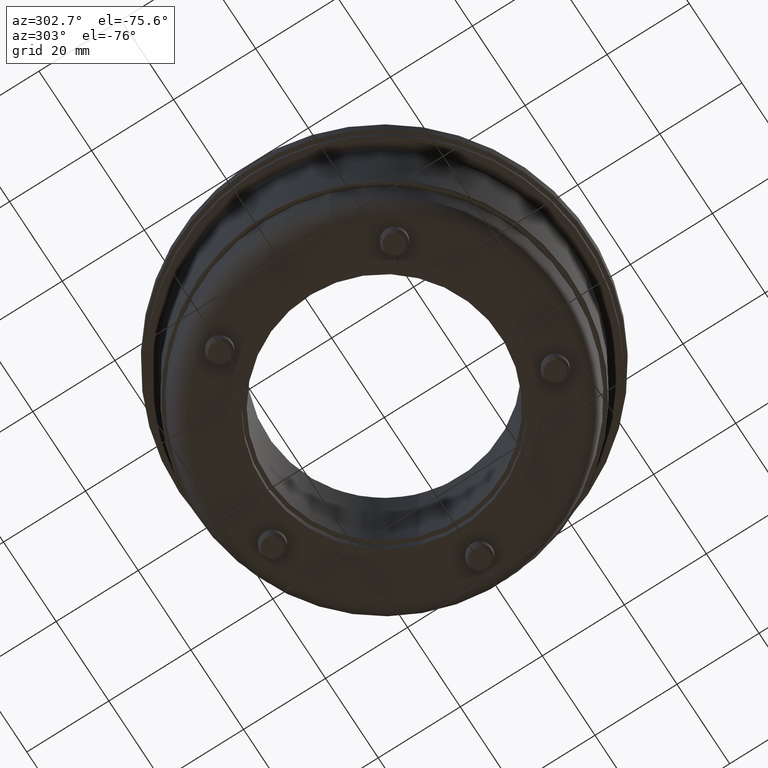
[diagram: clean part render]
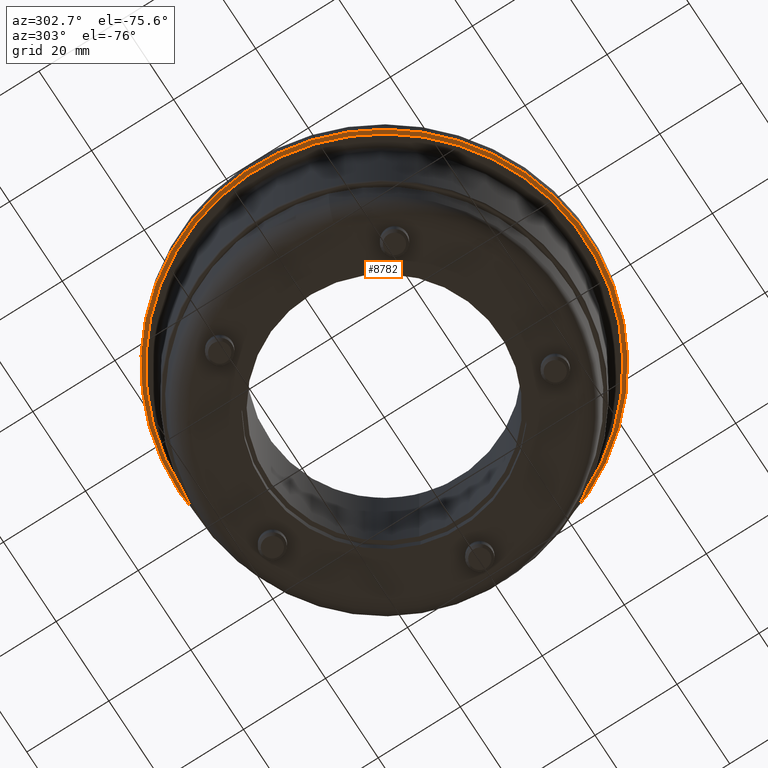
[diagram: same view with one face highlighted and labeled with its STEP entity id]
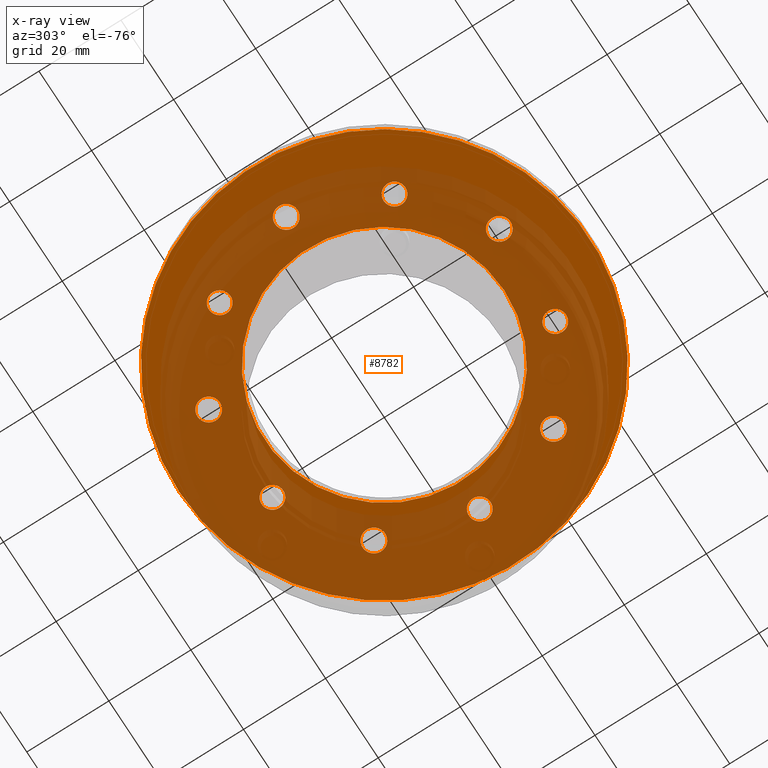
[diagram: x-ray of the same camera — body ghosted, the highlighted face saturated]
A machine part, auxiliary view. The second image highlights one B-rep face of the part: STEP entity #8782.
The next image is the same camera in x-ray: the body ghosted, the highlighted face saturated — about 75% of this face is hidden behind the body in this view.
In plain terms, the highlighted planar face has unit normal (-0, -0, -1).
Its self-contained STEP definition (entity closure, byte-faithful):
#8506=CARTESIAN_POINT('',(49.950000000000003,-4.999999999999993,-6.117111E-015));
#8507=VERTEX_POINT('',#8506);
#8508=CARTESIAN_POINT('',(0.0,-4.999999999999993,0.0));
#8509=DIRECTION('',(0.0,1.0,0.0));
#8510=DIRECTION('',(-1.0,0.0,0.0));
#8511=AXIS2_PLACEMENT_3D('',#8508,#8509,#8510);
#8512=CIRCLE('',#8511,49.950000000000003);
#8513=EDGE_CURVE('',#8507,#8507,#8512,.F.);
#8526=CARTESIAN_POINT('',(36.276651966525584,-4.999999999999993,-8.895477620655116));
#8527=VERTEX_POINT('',#8526);
#8528=CARTESIAN_POINT('',(35.42685523199448,-4.999999999999993,-11.510883040466791));
#8529=DIRECTION('',(0.0,1.0,0.0));
#8530=DIRECTION('',(-0.309016994374947,0.0,-0.951056516295154));
#8531=AXIS2_PLACEMENT_3D('',#8528,#8529,#8530);
#8532=CIRCLE('',#8531,2.750000000000001);
#8533=EDGE_CURVE('',#8527,#8527,#8532,.T.);
#8546=CARTESIAN_POINT('',(19.670203913363522,-4.999999999999993,31.752292484271102));
#8547=VERTEX_POINT('',#8546);
#8548=CARTESIAN_POINT('',(21.89500064789463,-4.999999999999993,30.135883040466801));
#8549=DIRECTION('',(0.0,1.0,0.0));
#8550=DIRECTION('',(0.809016994374948,0.0,-0.587785252292473));
#8551=AXIS2_PLACEMENT_3D('',#8548,#8549,#8550);
#8552=CIRCLE('',#8551,2.750000000000001);
#8553=EDGE_CURVE('',#8547,#8547,#8552,.T.);
#8566=CARTESIAN_POINT('',(-24.119797382425737,-4.999999999999993,28.519473596662497));
#8567=VERTEX_POINT('',#8566);
#8568=CARTESIAN_POINT('',(-21.895000647894634,-4.999999999999993,30.135883040466798));
#8569=DIRECTION('',(0.0,1.0,0.0));
#8570=DIRECTION('',(0.809016994374947,0.0,0.587785252292473));
#8571=AXIS2_PLACEMENT_3D('',#8568,#8569,#8570);
#8572=CIRCLE('',#8571,2.75);
#8573=EDGE_CURVE('',#8567,#8567,#8572,.T.);
#8586=CARTESIAN_POINT('',(-34.577058497463369,-4.999999999999993,-14.126288460278467));
#8587=VERTEX_POINT('',#8586);
#8588=CARTESIAN_POINT('',(-35.426855231994473,-4.999999999999993,-11.510883040466794));
#8589=DIRECTION('',(0.0,1.0,0.0));
#8590=DIRECTION('',(-0.309016994374948,0.0,0.951056516295154));
#8591=AXIS2_PLACEMENT_3D('',#8588,#8589,#8590);
#8592=CIRCLE('',#8591,2.75);
#8593=EDGE_CURVE('',#8587,#8587,#8592,.T.);
#8606=CARTESIAN_POINT('',(2.75,-4.999999999999993,-37.25));
#8607=VERTEX_POINT('',#8606);
#8608=CARTESIAN_POINT('',(0.0,-4.999999999999993,-37.25));
#8609=DIRECTION('',(0.0,1.0,0.0));
#8610=DIRECTION('',(-1.0,0.0,0.0));
#8611=AXIS2_PLACEMENT_3D('',#8608,#8609,#8610);
#8612=CIRCLE('',#8611,2.75);
#8613=EDGE_CURVE('',#8607,#8607,#8612,.T.);
#8626=CARTESIAN_POINT('',(22.126110430695757,-4.999999999999993,-26.806566277909688));
#8627=VERTEX_POINT('',#8626);
#8628=CARTESIAN_POINT('',(21.307215395602146,-4.999999999999993,-29.326866046091848));
#8629=DIRECTION('',(0.0,1.0,0.0));
#8630=DIRECTION('',(-0.309016994374947,0.0,-0.951056516295154));
#8631=AXIS2_PLACEMENT_3D('',#8628,#8629,#8630);
#8632=CIRCLE('',#8631,2.65);
#8633=EDGE_CURVE('',#8627,#8627,#8632,.T.);
#8646=CARTESIAN_POINT('',(32.331903680605713,-4.999999999999993,12.759496964666891));
#8647=VERTEX_POINT('',#8646);
#8648=CARTESIAN_POINT('',(34.475798715699327,-4.999999999999993,11.201866046091835));
#8649=DIRECTION('',(0.0,1.0,0.0));
#8650=DIRECTION('',(0.809016994374947,0.0,-0.587785252292473));
#8651=AXIS2_PLACEMENT_3D('',#8648,#8649,#8650);
#8652=CIRCLE('',#8651,2.65);
#8653=EDGE_CURVE('',#8647,#8647,#8652,.T.);
#8666=CARTESIAN_POINT('',(-2.143895035093604,-4.999999999999993,34.69236908142495));
#8667=VERTEX_POINT('',#8666);
#8668=CARTESIAN_POINT('',(6.661338E-015,-4.999999999999993,36.250000000000007));
#8669=DIRECTION('',(0.0,1.0,0.0));
#8670=DIRECTION('',(0.809016994374947,0.0,0.587785252292473));
#8671=AXIS2_PLACEMENT_3D('',#8668,#8669,#8670);
#8672=CIRCLE('',#8671,2.65);
#8673=EDGE_CURVE('',#8667,#8667,#8672,.T.);
#8686=CARTESIAN_POINT('',(-33.656903680605701,-4.999999999999993,8.681566277909695));
#8687=VERTEX_POINT('',#8686);
#8688=CARTESIAN_POINT('',(-34.475798715699312,-4.999999999999993,11.201866046091853));
#8689=DIRECTION('',(0.0,1.0,0.0));
#8690=DIRECTION('',(-0.309016994374948,0.0,0.951056516295154));
#8691=AXIS2_PLACEMENT_3D('',#8688,#8689,#8690);
#8692=CIRCLE('',#8691,2.65);
#8693=EDGE_CURVE('',#8687,#8687,#8692,.T.);
#8706=CARTESIAN_POINT('',(-18.657215395602158,-4.999999999999993,-29.326866046091837));
#8707=VERTEX_POINT('',#8706);
#8708=CARTESIAN_POINT('',(-21.30721539560216,-4.999999999999993,-29.326866046091837));
#8709=DIRECTION('',(0.0,1.0,0.0));
#8710=DIRECTION('',(-1.0,0.0,0.0));
#8711=AXIS2_PLACEMENT_3D('',#8708,#8709,#8710);
#8712=CIRCLE('',#8711,2.65);
#8713=EDGE_CURVE('',#8707,#8707,#8712,.T.);
#8726=CARTESIAN_POINT('',(-29.25,-4.99999999999999,0.0));
#8727=VERTEX_POINT('',#8726);
#8728=CARTESIAN_POINT('',(0.0,-4.99999999999999,0.0));
#8729=DIRECTION('',(0.0,1.0,0.0));
#8730=DIRECTION('',(-1.0,0.0,0.0));
#8731=AXIS2_PLACEMENT_3D('',#8728,#8729,#8730);
#8732=CIRCLE('',#8731,29.25);
#8733=EDGE_CURVE('',#8727,#8727,#8732,.T.);
#8741=CARTESIAN_POINT('',(-44.0,-4.999999999999993,0.0));
#8742=DIRECTION('',(0.0,-1.0,0.0));
#8743=DIRECTION('',(0.0,0.0,-1.0));
#8744=AXIS2_PLACEMENT_3D('',#8741,#8742,#8743);
#8745=PLANE('',#8744);
#8746=ORIENTED_EDGE('',*,*,#8513,.T.);
#8747=EDGE_LOOP('',(#8746));
#8748=FACE_OUTER_BOUND('',#8747,.T.);
#8749=ORIENTED_EDGE('',*,*,#8533,.T.);
#8750=EDGE_LOOP('',(#8749));
#8751=FACE_BOUND('',#8750,.T.);
#8752=ORIENTED_EDGE('',*,*,#8553,.T.);
#8753=EDGE_LOOP('',(#8752));
#8754=FACE_BOUND('',#8753,.T.);
#8755=ORIENTED_EDGE('',*,*,#8573,.T.);
#8756=EDGE_LOOP('',(#8755));
#8757=FACE_BOUND('',#8756,.T.);
#8758=ORIENTED_EDGE('',*,*,#8593,.T.);
#8759=EDGE_LOOP('',(#8758));
#8760=FACE_BOUND('',#8759,.T.);
#8761=ORIENTED_EDGE('',*,*,#8613,.T.);
#8762=EDGE_LOOP('',(#8761));
#8763=FACE_BOUND('',#8762,.T.);
#8764=ORIENTED_EDGE('',*,*,#8633,.T.);
#8765=EDGE_LOOP('',(#8764));
#8766=FACE_BOUND('',#8765,.T.);
#8767=ORIENTED_EDGE('',*,*,#8653,.T.);
#8768=EDGE_LOOP('',(#8767));
#8769=FACE_BOUND('',#8768,.T.);
#8770=ORIENTED_EDGE('',*,*,#8673,.T.);
#8771=EDGE_LOOP('',(#8770));
#8772=FACE_BOUND('',#8771,.T.);
#8773=ORIENTED_EDGE('',*,*,#8693,.T.);
#8774=EDGE_LOOP('',(#8773));
#8775=FACE_BOUND('',#8774,.T.);
#8776=ORIENTED_EDGE('',*,*,#8713,.T.);
#8777=EDGE_LOOP('',(#8776));
#8778=FACE_BOUND('',#8777,.T.);
#8779=ORIENTED_EDGE('',*,*,#8733,.T.);
#8780=EDGE_LOOP('',(#8779));
#8781=FACE_BOUND('',#8780,.T.);
#8782=ADVANCED_FACE('',(#8748,#8751,#8754,#8757,#8760,#8763,#8766,#8769,#8772,#8775,#8778,#8781),#8745,.T.);